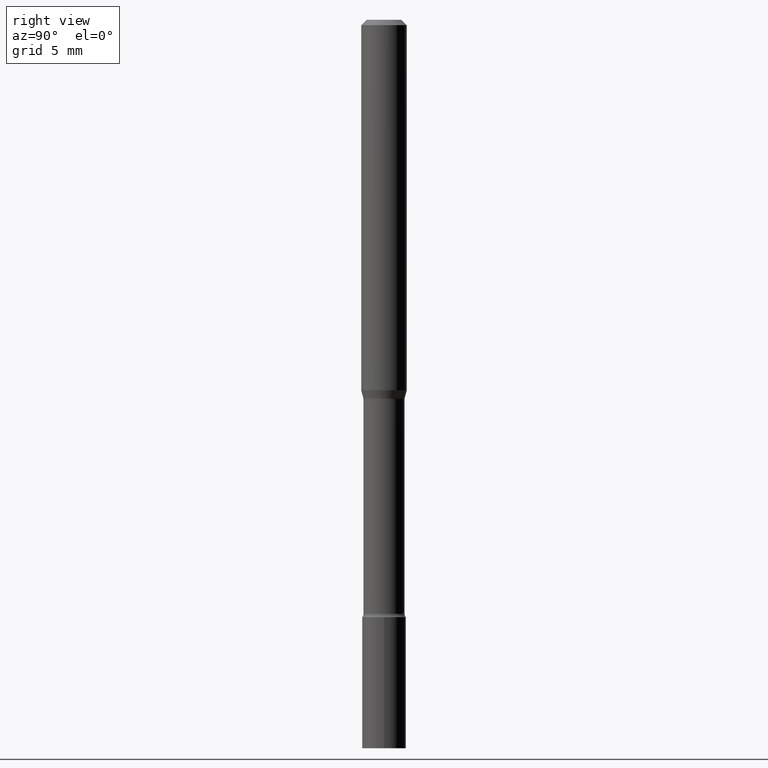
[diagram: clean part render]
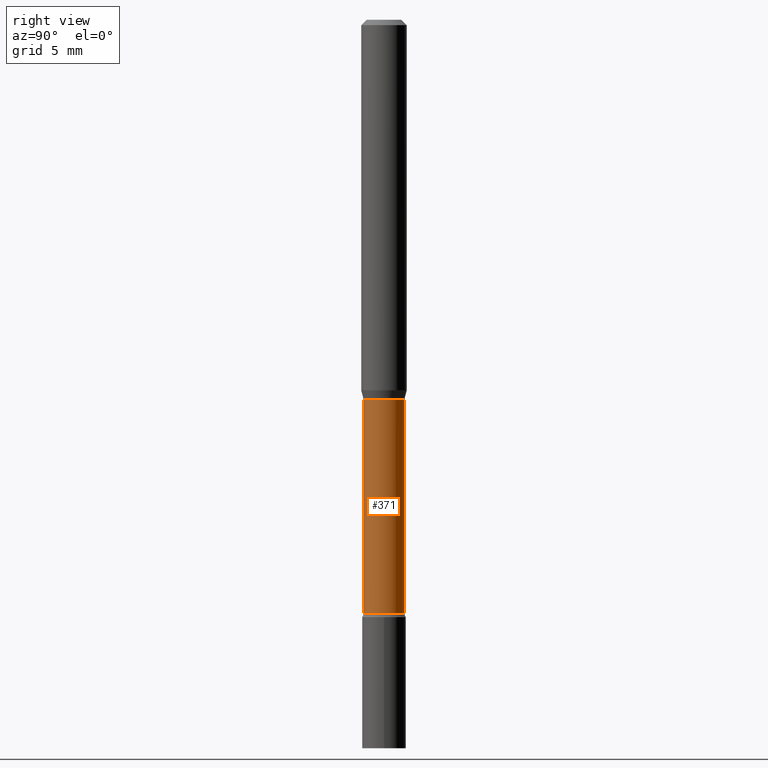
[diagram: same view with one face highlighted and labeled with its STEP entity id]
A machine part, right view. The second image highlights one B-rep face of the part: STEP entity #371.
In plain terms, the highlighted cylindrical surface (edge-blend (fillet) strip) has radius 1.4326 mm, axis along (-0, 0, 1).
Its self-contained STEP definition (entity closure, byte-faithful):
#22 = DIRECTION ( 'NONE',  ( -2.446045718082907683E-29, 3.490655168169751476E-15, 1.000000000000000000 ) ) ;
#28 = CYLINDRICAL_SURFACE ( 'NONE', #301, 0.05640000000000001956 ) ;
#35 = VERTEX_POINT ( 'NONE', #41 ) ;
#38 = ORIENTED_EDGE ( 'NONE', *, *, #158, .T. ) ;
#41 = CARTESIAN_POINT ( 'NONE',  ( 4.007461029687364320E-16, 0.05639999999999635583, -1.041974787463811003 ) ) ;
#57 = CARTESIAN_POINT ( 'NONE',  ( 4.007461029686965945E-16, 0.05640000000000001956, -1.968729514847740461E-16 ) ) ;
#62 = CARTESIAN_POINT ( 'NONE',  ( 0.000000000000000000, 0.000000000000000000, 0.000000000000000000 ) ) ;
#95 = LINE ( 'NONE', #57, #307 ) ;
#107 = ORIENTED_EDGE ( 'NONE', *, *, #183, .F. ) ;
#124 = DIRECTION ( 'NONE',  ( -2.446045718082907683E-29, 3.490655168169751476E-15, 1.000000000000000000 ) ) ;
#134 = AXIS2_PLACEMENT_3D ( 'NONE', #487, #124, #359 ) ;
#137 = EDGE_LOOP ( 'NONE', ( #38, #423, #107, #291 ) ) ;
#151 = EDGE_CURVE ( 'NONE', #446, #35, #95, .T. ) ;
#158 = EDGE_CURVE ( 'NONE', #181, #446, #351, .T. ) ;
#181 = VERTEX_POINT ( 'NONE', #450 ) ;
#183 = EDGE_CURVE ( 'NONE', #285, #35, #268, .T. ) ;
#191 = CARTESIAN_POINT ( 'NONE',  ( 3.987668854432127938E-29, -5.690644615826130312E-15, -1.630251153914436868 ) ) ;
#194 = CARTESIAN_POINT ( 'NONE',  ( -3.938390950214798652E-16, -0.05640000000000363473, -1.041974787463810781 ) ) ;
#204 = DIRECTION ( 'NONE',  ( -2.446045718082907683E-29, 3.490655168169751476E-15, 1.000000000000000000 ) ) ;
#205 = AXIS2_PLACEMENT_3D ( 'NONE', #191, #22, #356 ) ;
#238 = FACE_OUTER_BOUND ( 'NONE', #137, .T. ) ;
#268 = CIRCLE ( 'NONE', #134, 0.05639999999999999181 ) ;
#285 = VERTEX_POINT ( 'NONE', #194 ) ;
#291 = ORIENTED_EDGE ( 'NONE', *, *, #400, .F. ) ;
#301 = AXIS2_PLACEMENT_3D ( 'NONE', #62, #379, #464 ) ;
#307 = VECTOR ( 'NONE', #204, 39.37007874015748143 ) ;
#315 = LINE ( 'NONE', #349, #430 ) ;
#349 = CARTESIAN_POINT ( 'NONE',  ( -3.938390950215055032E-16, -0.05640000000000001956, 1.968729514847740461E-16 ) ) ;
#351 = CIRCLE ( 'NONE', #205, 0.05640000000000004732 ) ;
#356 = DIRECTION ( 'NONE',  ( -6.982962677686265133E-15, -1.000000000000000000, 4.843702116425994485E-15 ) ) ;
#359 = DIRECTION ( 'NONE',  ( -6.982962677686265922E-15, -1.000000000000000000, 2.421851058212999609E-15 ) ) ;
#361 = CARTESIAN_POINT ( 'NONE',  ( 4.135358722124184538E-16, 0.05639999999999435049, -1.630251153914437090 ) ) ;
#371 = ADVANCED_FACE ( 'NONE', ( #238 ), #28, .T. ) ;
#379 = DIRECTION ( 'NONE',  ( -2.446045718082907683E-29, 3.490655168169751476E-15, 1.000000000000000000 ) ) ;
#400 = EDGE_CURVE ( 'NONE', #181, #285, #315, .T. ) ;
#423 = ORIENTED_EDGE ( 'NONE', *, *, #151, .T. ) ;
#430 = VECTOR ( 'NONE', #473, 39.37007874015748143 ) ;
#446 = VERTEX_POINT ( 'NONE', #361 ) ;
#450 = CARTESIAN_POINT ( 'NONE',  ( -3.938390950214658630E-16, -0.05640000000000573721, -1.630251153914436646 ) ) ;
#464 = DIRECTION ( 'NONE',  ( -6.982962677686265133E-15, -1.000000000000000000, 3.490655168169751476E-15 ) ) ;
#473 = DIRECTION ( 'NONE',  ( -2.446045718082907683E-29, 3.490655168169751476E-15, 1.000000000000000000 ) ) ;
#487 = CARTESIAN_POINT ( 'NONE',  ( 2.548717967226202365E-29, -3.637174676963129904E-15, -1.041974787463810781 ) ) ;